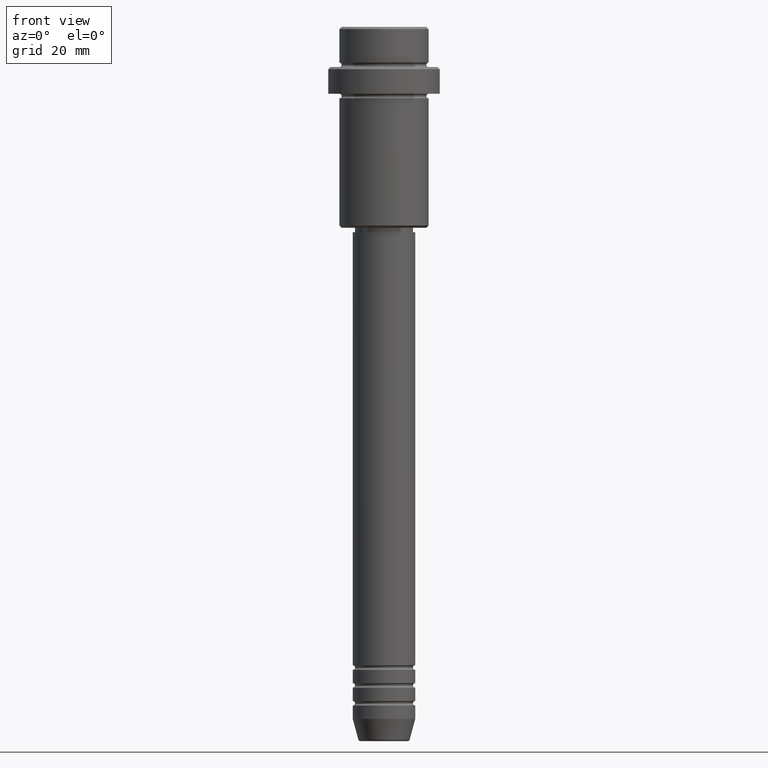
[diagram: clean part render]
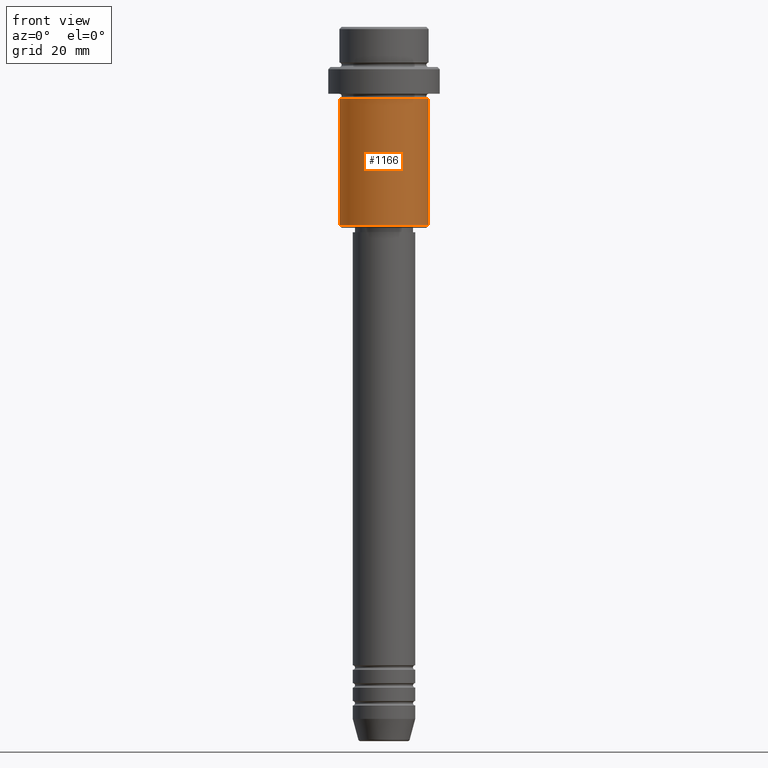
[diagram: same view with one face highlighted and labeled with its STEP entity id]
A machine part, front view. The second image highlights one B-rep face of the part: STEP entity #1166.
In plain terms, the highlighted cylindrical surface (partial cylindrical patch) has radius 10 mm, axis along (-0, -0, 1).
Its self-contained STEP definition (entity closure, byte-faithful):
#13 = VECTOR ( 'NONE', #748, 1000.000000000000000 ) ;
#43 = DIRECTION ( 'NONE',  ( 1.000000000000000000, 0.000000000000000000, 0.000000000000000000 ) ) ;
#77 = VECTOR ( 'NONE', #1048, 1000.000000000000000 ) ;
#96 = FACE_OUTER_BOUND ( 'NONE', #905, .T. ) ;
#119 = LINE ( 'NONE', #1132, #77 ) ;
#190 = VERTEX_POINT ( 'NONE', #834 ) ;
#210 = VERTEX_POINT ( 'NONE', #747 ) ;
#241 = DIRECTION ( 'NONE',  ( -0.000000000000000000, -0.000000000000000000, 1.000000000000000000 ) ) ;
#254 = CARTESIAN_POINT ( 'NONE',  ( 0.000000000000000000, 0.000000000000000000, -44.50000000000000711 ) ) ;
#306 = CARTESIAN_POINT ( 'NONE',  ( -10.00000000000000000, 1.224646799147353256E-15, 0.000000000000000000 ) ) ;
#385 = EDGE_CURVE ( 'NONE', #190, #717, #1148, .T. ) ;
#410 = CARTESIAN_POINT ( 'NONE',  ( 10.00000000000000000, 0.000000000000000000, -44.50000000000000711 ) ) ;
#415 = EDGE_CURVE ( 'NONE', #717, #664, #119, .T. ) ;
#426 = CYLINDRICAL_SURFACE ( 'NONE', #1047, 10.00000000000000000 ) ;
#487 = EDGE_CURVE ( 'NONE', #210, #664, #568, .T. ) ;
#547 = ORIENTED_EDGE ( 'NONE', *, *, #487, .F. ) ;
#568 = CIRCLE ( 'NONE', #1360, 10.00000000000000000 ) ;
#664 = VERTEX_POINT ( 'NONE', #1403 ) ;
#717 = VERTEX_POINT ( 'NONE', #410 ) ;
#722 = DIRECTION ( 'NONE',  ( -0.000000000000000000, -0.000000000000000000, 1.000000000000000000 ) ) ;
#747 = CARTESIAN_POINT ( 'NONE',  ( -10.00000000000000000, 1.224646799147353256E-15, -16.00000000000000000 ) ) ;
#748 = DIRECTION ( 'NONE',  ( -0.000000000000000000, -0.000000000000000000, 1.000000000000000000 ) ) ;
#767 = DIRECTION ( 'NONE',  ( -0.000000000000000000, -0.000000000000000000, 1.000000000000000000 ) ) ;
#834 = CARTESIAN_POINT ( 'NONE',  ( -10.00000000000000000, 1.224646799147353256E-15, -44.50000000000000711 ) ) ;
#840 = CARTESIAN_POINT ( 'NONE',  ( 0.000000000000000000, 0.000000000000000000, -16.00000000000000000 ) ) ;
#877 = DIRECTION ( 'NONE',  ( 1.000000000000000000, 0.000000000000000000, 0.000000000000000000 ) ) ;
#894 = DIRECTION ( 'NONE',  ( -1.000000000000000000, 0.000000000000000000, 0.000000000000000000 ) ) ;
#905 = EDGE_LOOP ( 'NONE', ( #976, #1196, #1343, #547 ) ) ;
#976 = ORIENTED_EDGE ( 'NONE', *, *, #1201, .F. ) ;
#1047 = AXIS2_PLACEMENT_3D ( 'NONE', #1397, #767, #877 ) ;
#1048 = DIRECTION ( 'NONE',  ( -0.000000000000000000, -0.000000000000000000, 1.000000000000000000 ) ) ;
#1132 = CARTESIAN_POINT ( 'NONE',  ( 10.00000000000000000, 0.000000000000000000, 0.000000000000000000 ) ) ;
#1148 = CIRCLE ( 'NONE', #1316, 10.00000000000000000 ) ;
#1166 = ADVANCED_FACE ( 'NONE', ( #96 ), #426, .T. ) ;
#1183 = LINE ( 'NONE', #306, #13 ) ;
#1196 = ORIENTED_EDGE ( 'NONE', *, *, #385, .T. ) ;
#1201 = EDGE_CURVE ( 'NONE', #190, #210, #1183, .T. ) ;
#1316 = AXIS2_PLACEMENT_3D ( 'NONE', #254, #241, #894 ) ;
#1343 = ORIENTED_EDGE ( 'NONE', *, *, #415, .T. ) ;
#1360 = AXIS2_PLACEMENT_3D ( 'NONE', #840, #722, #43 ) ;
#1397 = CARTESIAN_POINT ( 'NONE',  ( 0.000000000000000000, 0.000000000000000000, 0.000000000000000000 ) ) ;
#1403 = CARTESIAN_POINT ( 'NONE',  ( 10.00000000000000000, 0.000000000000000000, -16.00000000000000000 ) ) ;